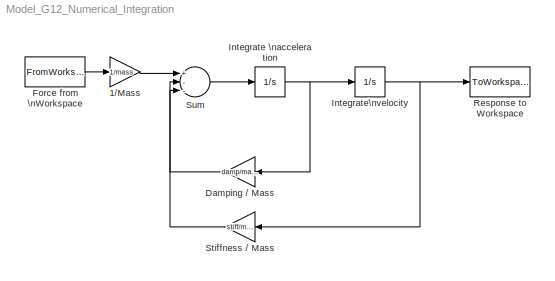
MODEL Model_G12_Numerical_Integration
KIND model
BLOCK [Gain] 1//Mass
  Gain = 1/mass
BLOCK [Gain] Damping // Mass
  Gain = damp/mass
BLOCK [FromWorkspace] Force from \nWorkspace
  SampleTime = dt
  VariableName = Ein
BLOCK [Integrator] Integrate \nacceleration
  IgnoreLimit = off
  Ports = [1, 1]
BLOCK [Integrator] Integrate\nvelocity
  IgnoreLimit = off
  Ports = [1, 1]
BLOCK [ToWorkspace] Response to Workspace
  MaxDataPoints = inf
  SampleTime = dt
  SaveFormat = Array
  VariableName = Eout
BLOCK [Gain] Stiffness // Mass
  Gain = stiff/mass
BLOCK [Sum] Sum
  Inputs = +--
  Ports = [3, 1]
LINE 1//Mass:1 -> Sum:1
LINE Damping // Mass:1 -> Sum:3
LINE Force from \nWorkspace:1 -> 1//Mass:1
NET Integrate \nacceleration:1 -> Damping // Mass:1, Integrate\nvelocity:1
NET Integrate\nvelocity:1 -> Response to Workspace:1, Stiffness // Mass:1
LINE Stiffness // Mass:1 -> Sum:2
LINE Sum:1 -> Integrate \nacceleration:1
note: NET lines group one-source signal fan-out (src -> all destinations, sorted); 1:1 wires keep LINE
